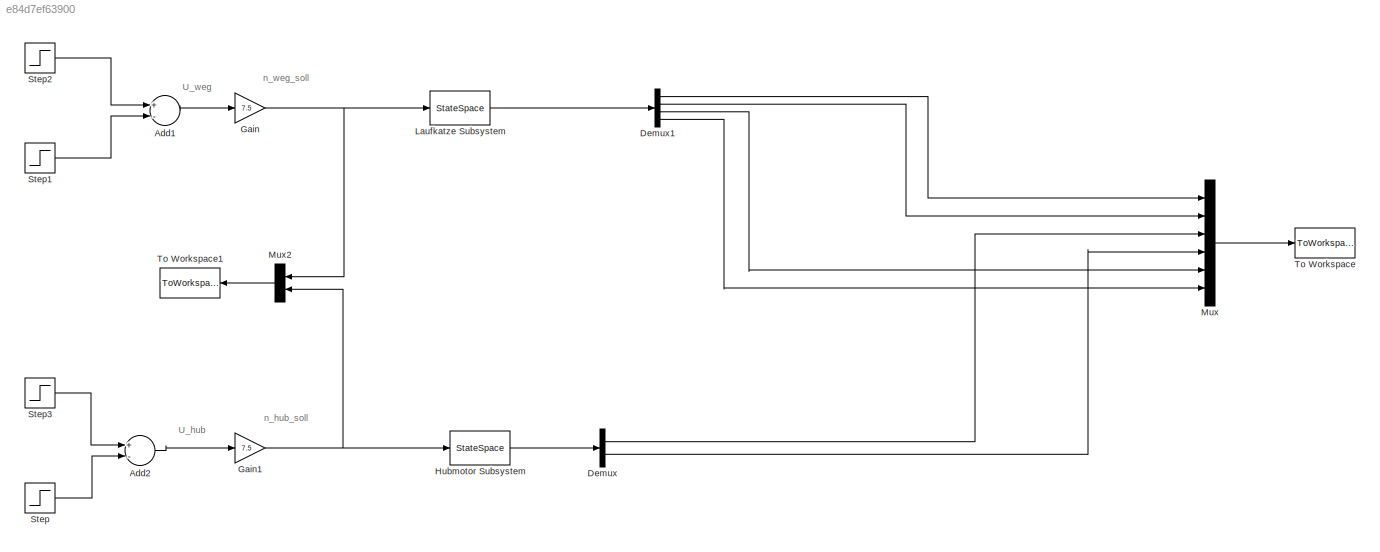
MODEL slx_e84d7ef63900
KIND model
CONFIG AbsTol = auto
CONFIG EnableMultiTasking = off
CONFIG FixedStep = auto
CONFIG MaxStep = auto
CONFIG MinStep = auto
CONFIG RelTol = 1e-3
CONFIG SampleTimeConstraint = Unconstrained
CONFIG Solver = VariableStepAuto
CONFIG SolverName = VariableStepAuto
CONFIG StartTime = 0.0
CONFIG StopTime = 10.0
BLOCK [Sum] Add1
  InputSameDT = off
  Inputs = +-
  OutDataTypeStr = Inherit: Inherit via internal rule
  Ports = [2, 1]
  SaturateOnIntegerOverflow = off
BLOCK [Sum] Add2
  InputSameDT = off
  Inputs = +-
  OutDataTypeStr = Inherit: Inherit via internal rule
  Ports = [2, 1]
  SaturateOnIntegerOverflow = off
BLOCK [Demux] Demux
  DisplayOption = bar
  Outputs = 2
  Ports = [1, 2]
BLOCK [Demux] Demux1
  DisplayOption = bar
  Ports = [1, 4]
BLOCK [Gain] Gain
  Gain = 7.5
  OutDataTypeStr = Inherit: Inherit via internal rule
  ParamDataTypeStr = Inherit: Inherit via internal rule
  SaturateOnIntegerOverflow = off
BLOCK [Gain] Gain1
  Gain = 7.5
  OutDataTypeStr = Inherit: Inherit via internal rule
  ParamDataTypeStr = Inherit: Inherit via internal rule
  SaturateOnIntegerOverflow = off
BLOCK [StateSpace] Hubmotor Subsystem
  A = A2
  B = B2
  C = C2
  D = D2
  Ports = [1, 1]
  X0 = [L_0 ; 0]
BLOCK [StateSpace] Laufkatze Subsystem
  A = A1
  B = B1
  C = C1
  D = D1
  Ports = [1, 1]
  X0 = [x_0 ; 0 ; phi_0 ; 0]
BLOCK [Mux] Mux
  DisplayOption = bar
  Inputs = 6
  Ports = [6, 1]
BLOCK [Mux] Mux2
  DisplayOption = bar
  Inputs = 2
  Ports = [2, 1]
BLOCK [Step] Step
  After = u2
  SampleTime = 0
  Time = t2
BLOCK [Step] Step1
  After = u1
  SampleTime = 0
  Time = t1
BLOCK [Step] Step2
  After = u1
  SampleTime = 0
  Time = t01
BLOCK [Step] Step3
  After = u2
  SampleTime = 0
  Time = t02
BLOCK [ToWorkspace] To Workspace
  MaxDataPoints = inf
  Ports = [1]
  SampleTime = -1
  Save2DSignal = 3-D array (concatenate along third dimension)
  VariableName = x
BLOCK [ToWorkspace] To Workspace1
  MaxDataPoints = inf
  Ports = [1]
  SampleTime = -1
  Save2DSignal = 3-D array (concatenate along third dimension)
  VariableName = u
ANNOTATION (root): U_hub
ANNOTATION (root): U_weg
ANNOTATION (root): n_hub_soll
ANNOTATION (root): n_weg_soll
LINE Add1:1 -> Gain:1
LINE Add2:1 -> Gain1:1
LINE Demux1:1 -> Mux:1
LINE Demux1:2 -> Mux:2
LINE Demux1:3 -> Mux:5
LINE Demux1:4 -> Mux:6
LINE Demux:1 -> Mux:3
LINE Demux:2 -> Mux:4
NET Gain1:1 -> Hubmotor Subsystem:1, Mux2:2
NET Gain:1 -> Laufkatze Subsystem:1, Mux2:1
LINE Hubmotor Subsystem:1 -> Demux:1
LINE Laufkatze Subsystem:1 -> Demux1:1
LINE Mux2:1 -> To Workspace1:1
LINE Mux:1 -> To Workspace:1
LINE Step1:1 -> Add1:2
LINE Step2:1 -> Add1:1
LINE Step3:1 -> Add2:1
LINE Step:1 -> Add2:2
note: NET lines group one-source signal fan-out (src -> all destinations, sorted); 1:1 wires keep LINE
